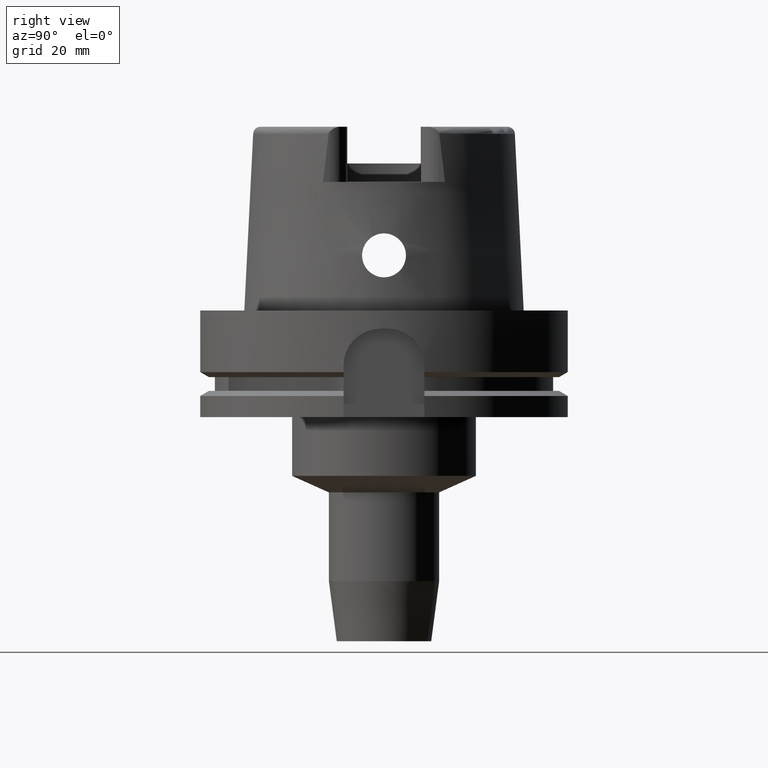
[diagram: clean part render]
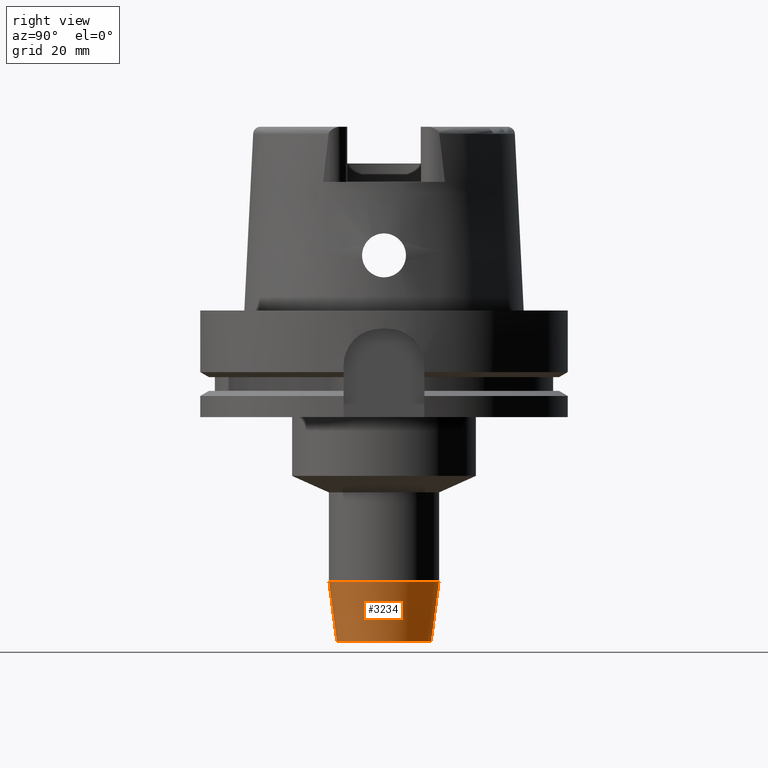
[diagram: same view with one face highlighted and labeled with its STEP entity id]
A machine part, right view. The second image highlights one B-rep face of the part: STEP entity #3234.
In plain terms, the highlighted conical surface has half-angle 7.5 deg.
Its self-contained STEP definition (entity closure, byte-faithful):
#1017=CARTESIAN_POINT('',(0.E0,0.E0,-9.E1));
#1018=DIRECTION('',(0.E0,0.E0,1.E0));
#1019=DIRECTION('',(0.E0,-1.E0,0.E0));
#1020=AXIS2_PLACEMENT_3D('',#1017,#1018,#1019);
#1049=DIRECTION('',(0.E0,-1.305261922200E-1,-9.914448613738E-1));
#1050=VECTOR('',#1049,1.650626562651E1);
#1051=CARTESIAN_POINT('',(0.E0,1.5E1,-7.363494776413E1));
#1052=LINE('',#1051,#1050);
#1056=CARTESIAN_POINT('',(0.E0,0.E0,-7.363494776413E1));
#1057=DIRECTION('',(0.E0,0.E0,1.E0));
#1058=DIRECTION('',(0.E0,-1.E0,0.E0));
#1059=AXIS2_PLACEMENT_3D('',#1056,#1057,#1058);
#1072=DIRECTION('',(0.E0,1.305261922200E-1,-9.914448613738E-1));
#1073=VECTOR('',#1072,1.650626562651E1);
#1074=CARTESIAN_POINT('',(0.E0,-1.5E1,-7.363494776413E1));
#1075=LINE('',#1074,#1073);
#2329=CARTESIAN_POINT('',(0.E0,-1.28455E1,-9.E1));
#2330=CARTESIAN_POINT('',(0.E0,1.28455E1,-9.E1));
#2331=VERTEX_POINT('',#2329);
#2332=VERTEX_POINT('',#2330);
#2333=CARTESIAN_POINT('',(0.E0,1.5E1,-7.363494776413E1));
#2334=VERTEX_POINT('',#2333);
#2335=CARTESIAN_POINT('',(0.E0,-1.5E1,-7.363494776413E1));
#2336=VERTEX_POINT('',#2335);
#3220=CARTESIAN_POINT('',(0.E0,0.E0,-8.181747388207E1));
#3221=DIRECTION('',(0.E0,0.E0,1.E0));
#3222=DIRECTION('',(0.E0,1.E0,0.E0));
#3223=AXIS2_PLACEMENT_3D('',#3220,#3221,#3222);
#3224=CONICAL_SURFACE('',#3223,1.392275E1,7.5E0);
#3226=ORIENTED_EDGE('',*,*,#3225,.T.);
#3227=ORIENTED_EDGE('',*,*,#3209,.F.);
#3229=ORIENTED_EDGE('',*,*,#3228,.F.);
#3231=ORIENTED_EDGE('',*,*,#3230,.T.);
#3232=EDGE_LOOP('',(#3226,#3227,#3229,#3231));
#3233=FACE_OUTER_BOUND('',#3232,.F.);
#1021=CIRCLE('',#1020,1.28455E1);
#1060=CIRCLE('',#1059,1.5E1);
#3209=EDGE_CURVE('',#2331,#2332,#1021,.T.);
#3225=EDGE_CURVE('',#2334,#2332,#1052,.T.);
#3228=EDGE_CURVE('',#2336,#2331,#1075,.T.);
#3230=EDGE_CURVE('',#2336,#2334,#1060,.T.);
#3234=ADVANCED_FACE('',(#3233),#3224,.T.);